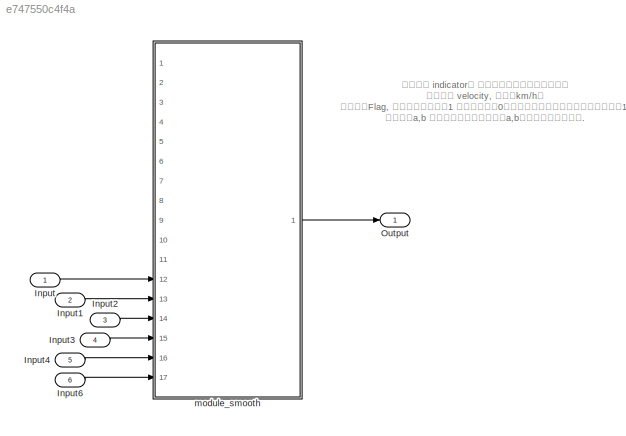
MODEL slx_e747550c4f4a
KIND model
CONFIG AbsTol = auto
CONFIG EnableMultiTasking = off
CONFIG FixedStep = 0.005
CONFIG MaxStep = auto
CONFIG MinStep = auto
CONFIG RelTol = 1e-3
CONFIG SampleTimeConstraint = Unconstrained
CONFIG Solver = FixedStepAuto
CONFIG SolverName = FixedStepAuto
CONFIG StartTime = 0.0
CONFIG StopTime = inf
BLOCK [Inport] Input
  IconDisplay = Port number
BLOCK [Inport] Input1
  IconDisplay = Port number
  Port = 2
BLOCK [Inport] Input2
  IconDisplay = Port number
  Port = 3
BLOCK [Inport] Input3
  IconDisplay = Port number
  Port = 4
BLOCK [Inport] Input4
  IconDisplay = Port number
  Port = 5
BLOCK [Inport] Input6
  IconDisplay = Port number
  Port = 6
BLOCK [Outport] Output
  IconDisplay = Port number
  OutDataTypeStr = Bus: PlanningOutput
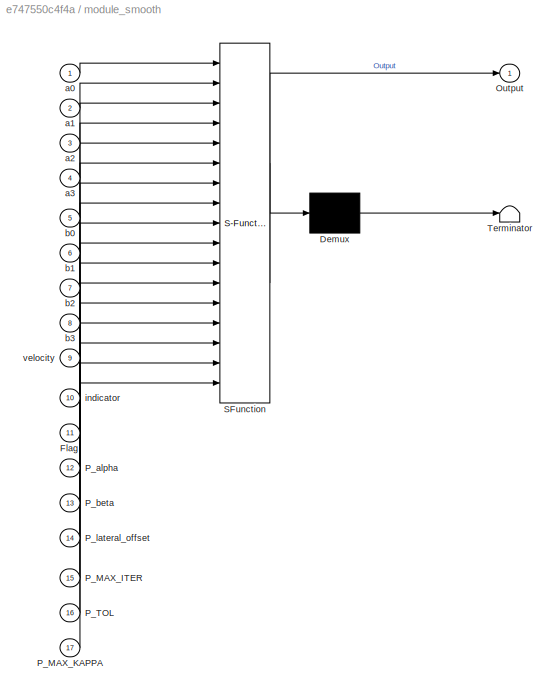
BLOCK [SubSystem] module_smooth 
  ErrorFcn = Stateflow.Translate.translate
  PermitHierarchicalResolution = ExplicitOnly
  Ports = [17, 1]
  RequestExecContextInheritance = off
  SFBlockType = MATLAB Function
  TreatAsAtomicUnit = on
BLOCK [Demux] module_smooth / Demux 
  Outputs = 1
  Ports = [1, 1]
BLOCK [S-Function] module_smooth / SFunction 
  EnableBusSupport = on
  FunctionName = sf_sfun
  PortCounts = [17 2]
  Ports = [17, 2]
  SFcnIsStateOwnerBlock = off
  SFunctionDeploymentMode = off
  Tag = Stateflow S-Function 2
BLOCK [Terminator] module_smooth / Terminator 
BLOCK [Inport] module_smooth /Flag
  IconDisplay = Port number
  Port = 11
BLOCK [Outport] module_smooth /Output
  IconDisplay = Port number
BLOCK [Inport] module_smooth /P_MAX_ITER
  IconDisplay = Port number
  Port = 15
BLOCK [Inport] module_smooth /P_MAX_KAPPA
  IconDisplay = Port number
  Port = 17
BLOCK [Inport] module_smooth /P_TOL
  IconDisplay = Port number
  Port = 16
BLOCK [Inport] module_smooth /P_alpha
  IconDisplay = Port number
  Port = 12
BLOCK [Inport] module_smooth /P_beta
  IconDisplay = Port number
  Port = 13
BLOCK [Inport] module_smooth /P_lateral_offset
  IconDisplay = Port number
  Port = 14
BLOCK [Inport] module_smooth /a0
  IconDisplay = Port number
BLOCK [Inport] module_smooth /a1
  IconDisplay = Port number
  Port = 2
BLOCK [Inport] module_smooth /a2
  IconDisplay = Port number
  Port = 3
BLOCK [Inport] module_smooth /a3
  IconDisplay = Port number
  Port = 4
BLOCK [Inport] module_smooth /b0
  IconDisplay = Port number
  Port = 5
BLOCK [Inport] module_smooth /b1
  IconDisplay = Port number
  Port = 6
BLOCK [Inport] module_smooth /b2
  IconDisplay = Port number
  Port = 7
BLOCK [Inport] module_smooth /b3
  IconDisplay = Port number
  Port = 8
BLOCK [Inport] module_smooth /indicator
  IconDisplay = Port number
  Port = 10
BLOCK [Inport] module_smooth /velocity
  IconDisplay = Port number
  Port = 9
ANNOTATION (root): 输入量： indicator， 向左变道需要为正，右为负。 输入量： velocity, 单位为km/h。 输入量：Flag, 表示能不能变道，1 为可以变道，0为不可以变道。需要激活函数时，置为1. 输入量：a,b 为车辆线的多项式参数，a,b分别为左和右车道线. 表定量：alpha 和beta是曲线平滑模块的参数，暂时推荐使用 alpha = 0.01, beta = 0.7, 测试效果在横向偏移3.5， 纵向规划距离40-80m效果较好。 表定量：P_lateral_offset 是向横向偏移的绝对值，该值取决于路宽和期望的横向偏移的距离。 表定量：P_MAX_ITER 曲线优化的终止条件,这里暂时设置为2000步。 表定量：P_TOL 优化后的曲线与原曲线之间可以接受的最大偏移量，这里推荐使用0.7m 表定量：P_MAX_KAPPA 曲线的优化目标，希望将曲线的曲率下降到某个值以下...<+32ch>
LINE Input1:1 -> module_smooth :13
LINE Input2:1 -> module_smooth :14
LINE Input3:1 -> module_smooth :15
LINE Input4:1 -> module_smooth :16
LINE Input6:1 -> module_smooth :17
LINE Input:1 -> module_smooth :12
LINE module_smooth :1 -> Output:1
CHART module_smooth
 states=1 transitions=1
  STATE_LABEL 'eML_blk_kernel()'
  STATE_LABEL 'SCRIPT:\nfunction Output = LineGeneration(a0,a1,a2,a3, b0,b1,b2,b3,velocity,indicator,Flag,P_alpha,P_beta,P_lateral_offset,...\n    P_MAX_ITER,P_TOL, P_MAX_KAPPA )\n%% the main function, which is used to generate changing lane curve dynamically    \n    if Flag ~= 1\n        output = zeros(400,8)-1;\n        Output = transition_to_BUS(output);\n    else\n       \n        LEN = calculateLEN(velocity);\n     ...<+3608ch>'
